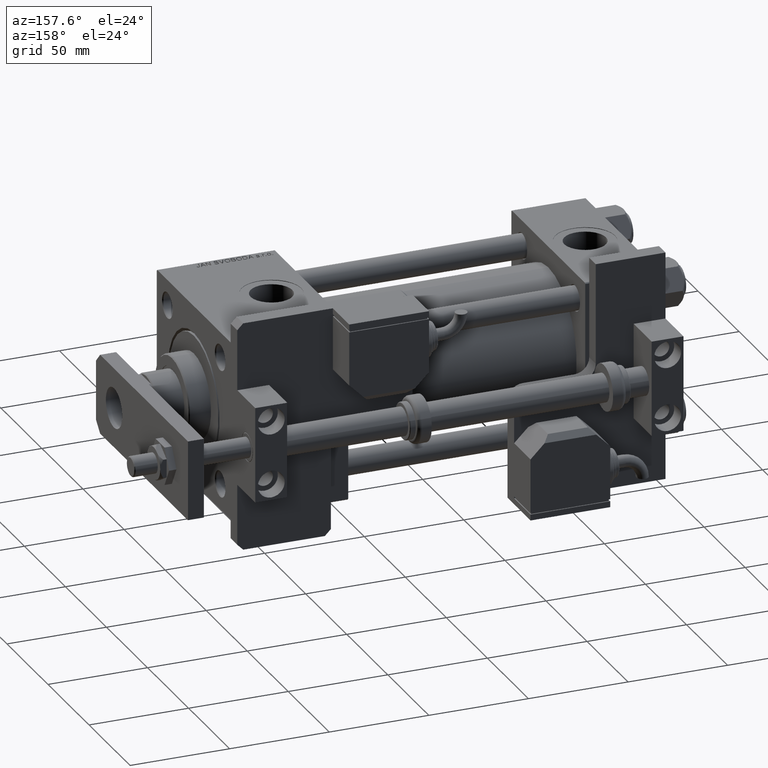
[diagram: clean part render]
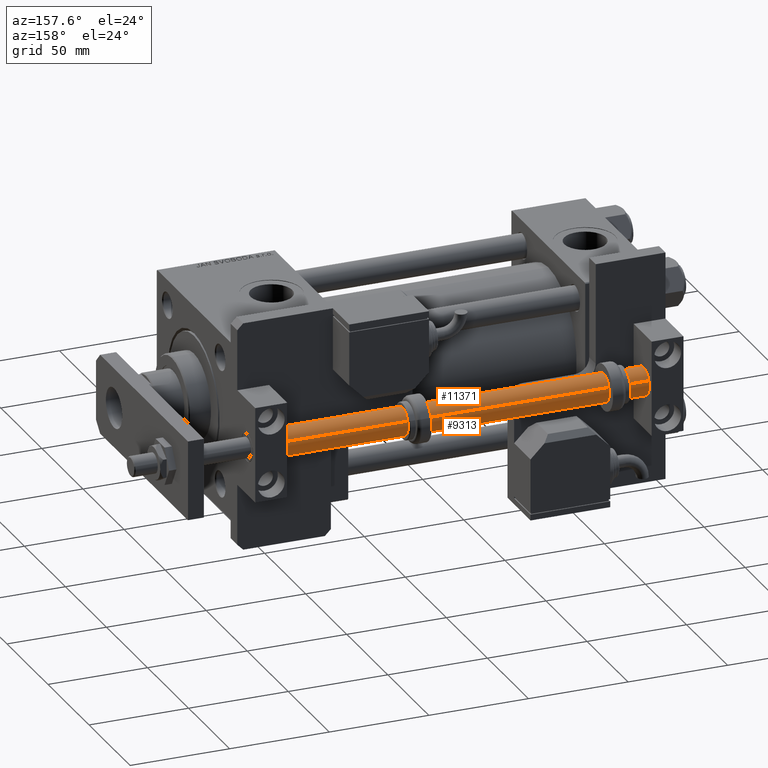
[diagram: same view with one multi-face feature highlighted, each face labeled with its STEP entity id]
A machine part, auxiliary view. The highlighted faces form ONE feature: a constant-radius fillet chain: 2 tangent blend faces with common blend radius 7 mm. The faces share edges in the B-rep.
Their STEP definitions:
[1] entity #11371 (Cylinder):
#202 = EDGE_LOOP ( 'NONE', ( #55415, #31314, #10334, #27626 ) ) ;
#2224 = DIRECTION ( 'NONE',  ( -1.000000000000000000, 0.000000000000000000, 0.000000000000000000 ) ) ;
#3743 = CIRCLE ( 'NONE', #27148, 7.000000000000000000 ) ;
#5392 = DIRECTION ( 'NONE',  ( -0.000000000000000000, -0.000000000000000000, 1.000000000000000000 ) ) ;
#6484 = VERTEX_POINT ( 'NONE', #33800 ) ;
#7411 = CARTESIAN_POINT ( 'NONE',  ( 7.000000000000000000, 8.572527594031473190E-16, 215.0000000000000000 ) ) ;
#9794 = EDGE_CURVE ( 'NONE', #42779, #16677, #56437, .T. ) ;
#10334 = ORIENTED_EDGE ( 'NONE', *, *, #27571, .T. ) ;
#11371 = ADVANCED_FACE ( 'NONE', ( #55319 ), #19525, .T. ) ;
#11518 = AXIS2_PLACEMENT_3D ( 'NONE', #35862, #5392, #23251 ) ;
#14584 = CARTESIAN_POINT ( 'NONE',  ( 0.000000000000000000, 0.000000000000000000, 215.0000000000000000 ) ) ;
#15099 = VERTEX_POINT ( 'NONE', #7411 ) ;
#15250 = CARTESIAN_POINT ( 'NONE',  ( 0.000000000000000000, 0.000000000000000000, 215.0000000000000000 ) ) ;
#16677 = VERTEX_POINT ( 'NONE', #45047 ) ;
#19525 = CYLINDRICAL_SURFACE ( 'NONE', #41536, 7.000000000000000000 ) ;
#20540 = LINE ( 'NONE', #41993, #36215 ) ;
#23251 = DIRECTION ( 'NONE',  ( 1.000000000000000000, 0.000000000000000000, 0.000000000000000000 ) ) ;
#24487 = DIRECTION ( 'NONE',  ( -0.000000000000000000, -0.000000000000000000, -1.000000000000000000 ) ) ;
#27148 = AXIS2_PLACEMENT_3D ( 'NONE', #15250, #49882, #36959 ) ;
#27571 = EDGE_CURVE ( 'NONE', #6484, #42779, #34295, .T. ) ;
#27626 = ORIENTED_EDGE ( 'NONE', *, *, #9794, .T. ) ;
#28753 = DIRECTION ( 'NONE',  ( -0.000000000000000000, -0.000000000000000000, -1.000000000000000000 ) ) ;
#31314 = ORIENTED_EDGE ( 'NONE', *, *, #35991, .F. ) ;
#33452 = DIRECTION ( 'NONE',  ( -0.000000000000000000, -0.000000000000000000, -1.000000000000000000 ) ) ;
#33800 = CARTESIAN_POINT ( 'NONE',  ( -7.000000000000000000, 0.000000000000000000, 215.0000000000000000 ) ) ;
#34119 = CARTESIAN_POINT ( 'NONE',  ( -7.000000000000000000, 0.000000000000000000, 0.2999999999999947153 ) ) ;
#34295 = LINE ( 'NONE', #56005, #54148 ) ;
#35862 = CARTESIAN_POINT ( 'NONE',  ( 0.000000000000000000, 0.000000000000000000, 0.2999999999999947153 ) ) ;
#35991 = EDGE_CURVE ( 'NONE', #6484, #15099, #3743, .T. ) ;
#36215 = VECTOR ( 'NONE', #33452, 1000.000000000000000 ) ;
#36959 = DIRECTION ( 'NONE',  ( 1.000000000000000000, 0.000000000000000000, 0.000000000000000000 ) ) ;
#41536 = AXIS2_PLACEMENT_3D ( 'NONE', #14584, #24487, #2224 ) ;
#41993 = CARTESIAN_POINT ( 'NONE',  ( 7.000000000000000000, 8.572527594031473190E-16, 215.0000000000000000 ) ) ;
#42779 = VERTEX_POINT ( 'NONE', #34119 ) ;
#45047 = CARTESIAN_POINT ( 'NONE',  ( 7.000000000000000000, 8.572527594031473190E-16, 0.2999999999999947153 ) ) ;
#49882 = DIRECTION ( 'NONE',  ( 0.000000000000000000, 0.000000000000000000, 1.000000000000000000 ) ) ;
#54148 = VECTOR ( 'NONE', #28753, 1000.000000000000000 ) ;
#55319 = FACE_OUTER_BOUND ( 'NONE', #202, .T. ) ;
#55415 = ORIENTED_EDGE ( 'NONE', *, *, #57980, .F. ) ;
#56005 = CARTESIAN_POINT ( 'NONE',  ( -7.000000000000000000, 0.000000000000000000, 215.0000000000000000 ) ) ;
#56437 = CIRCLE ( 'NONE', #11518, 7.000000000000000000 ) ;
#57980 = EDGE_CURVE ( 'NONE', #15099, #16677, #20540, .T. ) ;
[2] entity #9313 (Cylinder):
#2446 = CIRCLE ( 'NONE', #42736, 7.000000000000000000 ) ;
#4282 = CARTESIAN_POINT ( 'NONE',  ( 0.000000000000000000, 0.000000000000000000, 215.0000000000000000 ) ) ;
#4568 = CYLINDRICAL_SURFACE ( 'NONE', #46853, 7.000000000000000000 ) ;
#5497 = ORIENTED_EDGE ( 'NONE', *, *, #56441, .F. ) ;
#6333 = ORIENTED_EDGE ( 'NONE', *, *, #24966, .T. ) ;
#6484 = VERTEX_POINT ( 'NONE', #33800 ) ;
#7411 = CARTESIAN_POINT ( 'NONE',  ( 7.000000000000000000, 8.572527594031473190E-16, 215.0000000000000000 ) ) ;
#7745 = DIRECTION ( 'NONE',  ( -0.000000000000000000, -0.000000000000000000, 1.000000000000000000 ) ) ;
#9313 = ADVANCED_FACE ( 'NONE', ( #12213 ), #4568, .T. ) ;
#11284 = DIRECTION ( 'NONE',  ( 1.000000000000000000, 0.000000000000000000, 0.000000000000000000 ) ) ;
#12213 = FACE_OUTER_BOUND ( 'NONE', #25937, .T. ) ;
#15099 = VERTEX_POINT ( 'NONE', #7411 ) ;
#16677 = VERTEX_POINT ( 'NONE', #45047 ) ;
#17765 = DIRECTION ( 'NONE',  ( -1.000000000000000000, 0.000000000000000000, 0.000000000000000000 ) ) ;
#19485 = CIRCLE ( 'NONE', #52273, 7.000000000000000000 ) ;
#20540 = LINE ( 'NONE', #41993, #36215 ) ;
#22441 = DIRECTION ( 'NONE',  ( -0.000000000000000000, -0.000000000000000000, -1.000000000000000000 ) ) ;
#23797 = ORIENTED_EDGE ( 'NONE', *, *, #57980, .T. ) ;
#24452 = CARTESIAN_POINT ( 'NONE',  ( 0.000000000000000000, 0.000000000000000000, 0.2999999999999947153 ) ) ;
#24966 = EDGE_CURVE ( 'NONE', #16677, #42779, #19485, .T. ) ;
#25937 = EDGE_LOOP ( 'NONE', ( #5497, #23797, #6333, #55383 ) ) ;
#27571 = EDGE_CURVE ( 'NONE', #6484, #42779, #34295, .T. ) ;
#28753 = DIRECTION ( 'NONE',  ( -0.000000000000000000, -0.000000000000000000, -1.000000000000000000 ) ) ;
#30752 = CARTESIAN_POINT ( 'NONE',  ( 0.000000000000000000, 0.000000000000000000, 215.0000000000000000 ) ) ;
#33452 = DIRECTION ( 'NONE',  ( -0.000000000000000000, -0.000000000000000000, -1.000000000000000000 ) ) ;
#33800 = CARTESIAN_POINT ( 'NONE',  ( -7.000000000000000000, 0.000000000000000000, 215.0000000000000000 ) ) ;
#34119 = CARTESIAN_POINT ( 'NONE',  ( -7.000000000000000000, 0.000000000000000000, 0.2999999999999947153 ) ) ;
#34295 = LINE ( 'NONE', #56005, #54148 ) ;
#36215 = VECTOR ( 'NONE', #33452, 1000.000000000000000 ) ;
#41993 = CARTESIAN_POINT ( 'NONE',  ( 7.000000000000000000, 8.572527594031473190E-16, 215.0000000000000000 ) ) ;
#42736 = AXIS2_PLACEMENT_3D ( 'NONE', #30752, #53630, #49249 ) ;
#42779 = VERTEX_POINT ( 'NONE', #34119 ) ;
#45047 = CARTESIAN_POINT ( 'NONE',  ( 7.000000000000000000, 8.572527594031473190E-16, 0.2999999999999947153 ) ) ;
#46853 = AXIS2_PLACEMENT_3D ( 'NONE', #4282, #22441, #17765 ) ;
#49249 = DIRECTION ( 'NONE',  ( 1.000000000000000000, 0.000000000000000000, 0.000000000000000000 ) ) ;
#52273 = AXIS2_PLACEMENT_3D ( 'NONE', #24452, #7745, #11284 ) ;
#53630 = DIRECTION ( 'NONE',  ( 0.000000000000000000, 0.000000000000000000, 1.000000000000000000 ) ) ;
#54148 = VECTOR ( 'NONE', #28753, 1000.000000000000000 ) ;
#55383 = ORIENTED_EDGE ( 'NONE', *, *, #27571, .F. ) ;
#56005 = CARTESIAN_POINT ( 'NONE',  ( -7.000000000000000000, 0.000000000000000000, 215.0000000000000000 ) ) ;
#56441 = EDGE_CURVE ( 'NONE', #15099, #6484, #2446, .T. ) ;
#57980 = EDGE_CURVE ( 'NONE', #15099, #16677, #20540, .T. ) ;